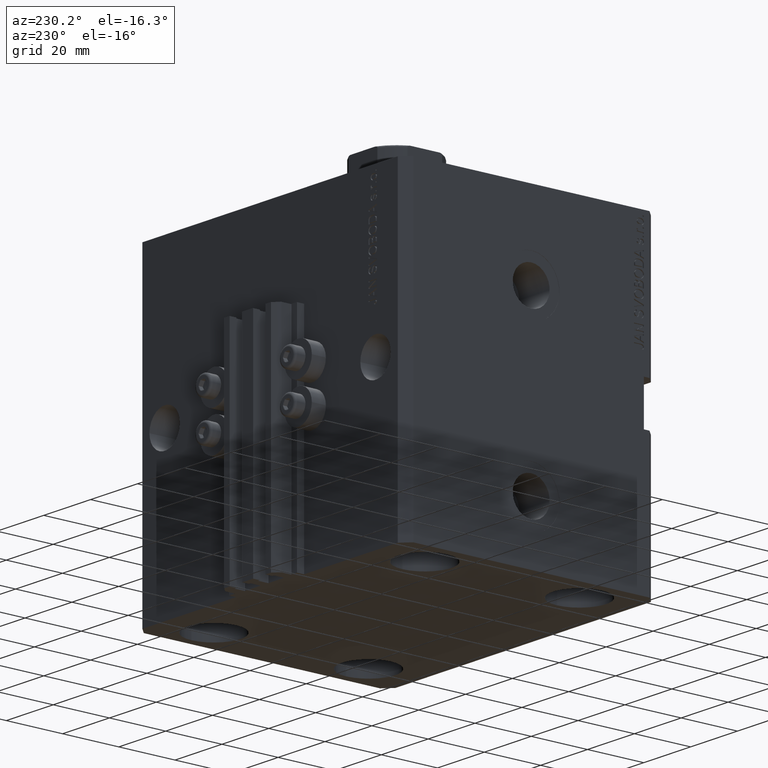
[diagram: clean part render]
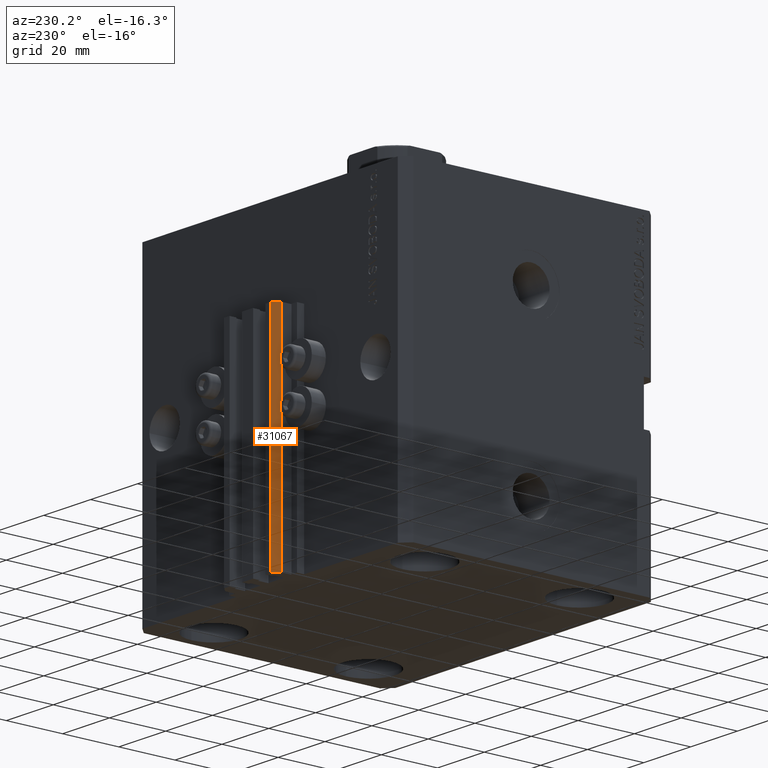
[diagram: same view with one face highlighted and labeled with its STEP entity id]
A machine part, auxiliary view. The second image highlights one B-rep face of the part: STEP entity #31067.
In plain terms, the highlighted planar face has unit normal (-0.7071, 0.7071, 0).
Its self-contained STEP definition (entity closure, byte-faithful):
#4028 = LINE ( 'NONE', #11741, #19768 ) ;
#5008 = DIRECTION ( 'NONE',  ( -0.7071067811865472397, -0.7071067811865479058, 0.000000000000000000 ) ) ;
#5537 = CARTESIAN_POINT ( 'NONE',  ( -10.00000000000000000, 52.99999999999999289, -33.00000000000000000 ) ) ;
#7036 = VERTEX_POINT ( 'NONE', #7372 ) ;
#7372 = CARTESIAN_POINT ( 'NONE',  ( -10.00000000000000000, 52.99999999999999289, -110.0000000000000000 ) ) ;
#7749 = CARTESIAN_POINT ( 'NONE',  ( -10.00000000000000000, 52.99999999999999289, -110.0000000000000000 ) ) ;
#11497 = PLANE ( 'NONE',  #21438 ) ;
#11741 = CARTESIAN_POINT ( 'NONE',  ( -10.00000000000000000, 52.99999999999999289, -33.00000000000000000 ) ) ;
#12767 = LINE ( 'NONE', #31652, #45443 ) ;
#13552 = ORIENTED_EDGE ( 'NONE', *, *, #44445, .T. ) ;
#13743 = LINE ( 'NONE', #36603, #30089 ) ;
#13985 = DIRECTION ( 'NONE',  ( 0.000000000000000000, 0.000000000000000000, 1.000000000000000000 ) ) ;
#14994 = CARTESIAN_POINT ( 'NONE',  ( -10.00000000000000000, 52.99999999999999289, -110.0000000000000000 ) ) ;
#18307 = ORIENTED_EDGE ( 'NONE', *, *, #25349, .F. ) ;
#19768 = VECTOR ( 'NONE', #5008, 999.9999999999998863 ) ;
#19999 = VERTEX_POINT ( 'NONE', #48357 ) ;
#21438 = AXIS2_PLACEMENT_3D ( 'NONE', #14994, #30145, #23413 ) ;
#22093 = EDGE_LOOP ( 'NONE', ( #37930, #18307, #31541, #13552 ) ) ;
#23413 = DIRECTION ( 'NONE',  ( -0.7071067811865472397, -0.7071067811865479058, 0.000000000000000000 ) ) ;
#25349 = EDGE_CURVE ( 'NONE', #7036, #29845, #13743, .T. ) ;
#26138 = EDGE_CURVE ( 'NONE', #29845, #30499, #4028, .T. ) ;
#26941 = VECTOR ( 'NONE', #34832, 999.9999999999998863 ) ;
#29845 = VERTEX_POINT ( 'NONE', #5537 ) ;
#30085 = EDGE_CURVE ( 'NONE', #7036, #19999, #37853, .T. ) ;
#30089 = VECTOR ( 'NONE', #13985, 1000.000000000000000 ) ;
#30145 = DIRECTION ( 'NONE',  ( -0.7071067811865479058, 0.7071067811865472397, 0.000000000000000000 ) ) ;
#30499 = VERTEX_POINT ( 'NONE', #35946 ) ;
#31067 = ADVANCED_FACE ( 'NONE', ( #38579 ), #11497, .T. ) ;
#31541 = ORIENTED_EDGE ( 'NONE', *, *, #30085, .T. ) ;
#31652 = CARTESIAN_POINT ( 'NONE',  ( -12.00000000000000000, 50.99999999999999289, -110.0000000000000000 ) ) ;
#34832 = DIRECTION ( 'NONE',  ( -0.7071067811865472397, -0.7071067811865479058, 0.000000000000000000 ) ) ;
#35387 = DIRECTION ( 'NONE',  ( 0.000000000000000000, 0.000000000000000000, 1.000000000000000000 ) ) ;
#35946 = CARTESIAN_POINT ( 'NONE',  ( -12.00000000000000000, 50.99999999999999289, -33.00000000000000000 ) ) ;
#36603 = CARTESIAN_POINT ( 'NONE',  ( -10.00000000000000000, 52.99999999999999289, -110.0000000000000000 ) ) ;
#37853 = LINE ( 'NONE', #7749, #26941 ) ;
#37930 = ORIENTED_EDGE ( 'NONE', *, *, #26138, .F. ) ;
#38579 = FACE_OUTER_BOUND ( 'NONE', #22093, .T. ) ;
#44445 = EDGE_CURVE ( 'NONE', #19999, #30499, #12767, .T. ) ;
#45443 = VECTOR ( 'NONE', #35387, 1000.000000000000000 ) ;
#48357 = CARTESIAN_POINT ( 'NONE',  ( -12.00000000000000000, 50.99999999999999289, -110.0000000000000000 ) ) ;